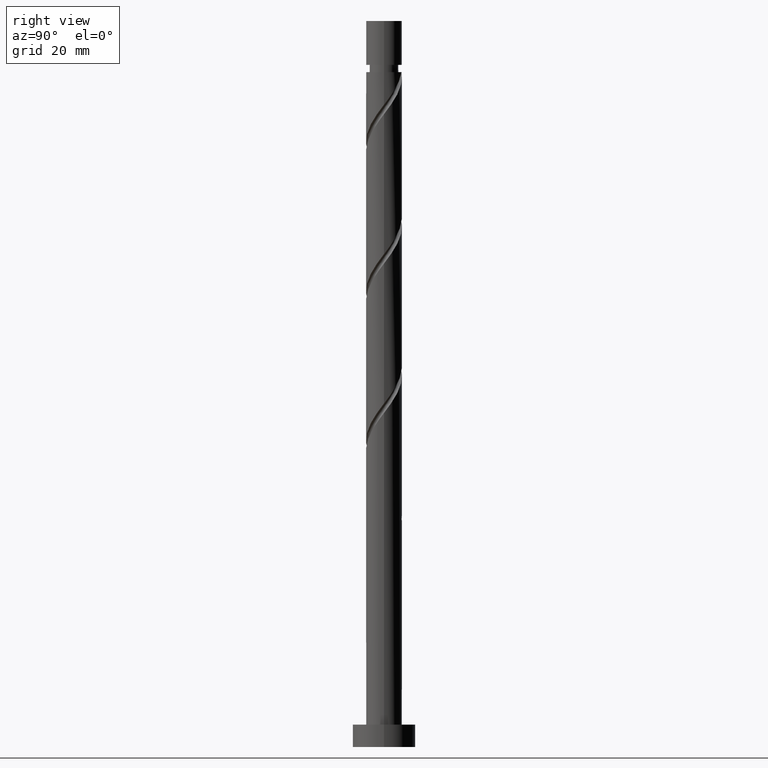
[diagram: clean part render]
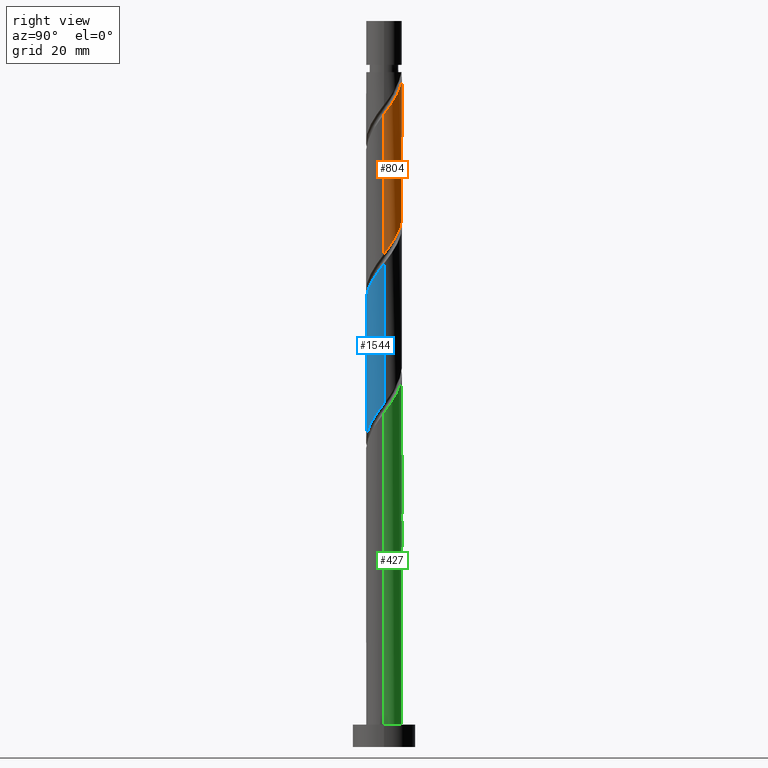
[diagram: same view with three faces highlighted in distinct colors, each labeled with its STEP entity id]
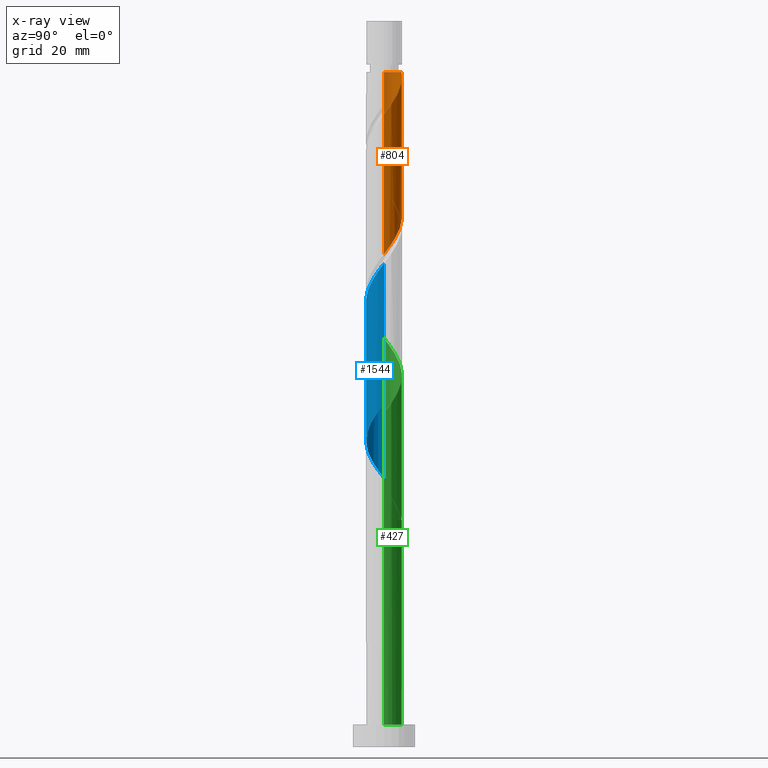
[diagram: x-ray of the same camera — body ghosted, the three highlighted faces saturated]
A machine part, right view with three faces highlighted in distinct colors.
The next image is the same camera in x-ray (body ghosted, the three faces saturated) — at least one of them is partly hidden behind the body in this view.
Their STEP definitions:

[orange] entity #804 — the highlighted cylindrical surface (edge-blend (fillet) strip) has radius 4 mm, axis along (-0, -0, -1).
#4 = AXIS2_PLACEMENT_3D ( 'NONE', #336, #876, #746 ) ;
#5 = CARTESIAN_POINT ( 'NONE',  ( 1.769985991819537530, 3.625529984802036143, 147.1270228079310129 ) ) ;
#11 = CARTESIAN_POINT ( 'NONE',  ( 3.334708473430079145, 2.209008691072452901, 113.0992450301531704 ) ) ;
#37 = VERTEX_POINT ( 'NONE', #1554 ) ;
#45 = CARTESIAN_POINT ( 'NONE',  ( -0.2799121591427005673, 4.024794064930540927, 149.9048005857087844 ) ) ;
#46 = ORIENTED_EDGE ( 'NONE', *, *, #507, .F. ) ;
#117 = EDGE_CURVE ( 'NONE', #1320, #896, #175, .T. ) ;
#136 = CARTESIAN_POINT ( 'NONE',  ( 4.000000000000000000, 5.981513777448084425E-15, 109.9961450186966232 ) ) ;
#137 = CARTESIAN_POINT ( 'NONE',  ( 2.648031390325383150, 3.043886962058127921, 145.7381339190420988 ) ) ;
#140 = CARTESIAN_POINT ( 'NONE',  ( 4.000000000000000000, 5.981513777448084425E-15, 109.9961450186966232 ) ) ;
#142 = CARTESIAN_POINT ( 'NONE',  ( 1.312067740227892410, 3.815205935069464260, 116.5714672523754274 ) ) ;
#154 = CARTESIAN_POINT ( 'NONE',  ( 3.580411880364401611, 1.783437906669445905, 143.6548005857087276 ) ) ;
#157 = CARTESIAN_POINT ( 'NONE',  ( -2.996824607992350842, 2.649347517584564216, 122.8214672523754274 ) ) ;
#175 = LINE ( 'NONE', #606, #803 ) ;
#228 =( BOUNDED_CURVE ( )  B_SPLINE_CURVE ( 2, ( #1624, #285, #421, #1094, #1498, #1229, #157, #1594, #1083, #547, #947, #1354, #1074, #1217, #1733, #142, #1196, #686, #1090, #800, #11, #1493, #412, #670, #655, #405, #136 ),
 .UNSPECIFIED., .F., .T. ) 
 B_SPLINE_CURVE_WITH_KNOTS ( ( 3, 2, 2, 2, 2, 2, 2, 2, 2, 2, 2, 2, 2, 3 ),
 ( 0.4295317669814461836, 0.4375000000000000000, 0.4479166666666666852, 0.4583333333333333148, 0.4687500000000000000, 0.4791666666666666852, 0.4895833333333333148, 0.5000000000000000000, 0.5104166666666666297, 0.5208333333333333703, 0.5312500000000000000, 0.5416666666666666297, 0.5520833333333333703, 0.5545317669814462391 ),
 .UNSPECIFIED. ) 
 CURVE ( )  GEOMETRIC_REPRESENTATION_ITEM ( )  RATIONAL_B_SPLINE_CURVE ( ( 0.9062941362546370616, 0.9031415850403410328, 0.9090909090909164991, 0.9013135103398348669, 0.9090909090909164991, 0.9013135103398348669, 0.9090909090909164991, 0.9013135103398348669, 0.9090909090909164991, 0.9013135103398348669, 0.9090909090909164991, 0.9013135103398348669, 0.9090909090909164991, 0.9013135103398348669, 0.9090909090909164991, 0.9013135103398348669, 0.9090909090909164991, 0.9013135103398348669, 0.9090909090909164991, 0.9013135103398348669, 0.9090909090909164991, 0.9013135103398348669, 0.9090909090909164991, 0.9013135103398348669, 0.9090909090909164991, 0.9072628343904102222, 0.9062941362546368396 ) ) 
 REPRESENTATION_ITEM ( '' )  );
#273 = ORIENTED_EDGE ( 'NONE', *, *, #1366, .F. ) ;
#285 = CARTESIAN_POINT ( 'NONE',  ( -4.000000000000002665, 0.4020151261036815638, 126.1293853161740088 ) ) ;
#292 = CARTESIAN_POINT ( 'NONE',  ( 4.000000000000006217, -1.600054935467353086E-15, 141.2023450416097887 ) ) ;
#336 = CARTESIAN_POINT ( 'NONE',  ( 0.000000000000000000, 0.000000000000000000, 162.0000000000000000 ) ) ;
#339 = CARTESIAN_POINT ( 'NONE',  ( -3.999999999999993339, 0.000000000000000000, 150.5992450301532131 ) ) ;
#380 = CARTESIAN_POINT ( 'NONE',  ( 0.000000000000000000, 0.000000000000000000, 150.5992450301532131 ) ) ;
#385 = ORIENTED_EDGE ( 'NONE', *, *, #117, .T. ) ;
#401 =( BOUNDED_CURVE ( )  B_SPLINE_CURVE ( 2, ( #292, #1326, #1367, #1729, #154, #814, #700, #137, #678, #5, #1237, #449, #1114, #45, #1102 ),
 .UNSPECIFIED., .F., .F. ) 
 B_SPLINE_CURVE_WITH_KNOTS ( ( 3, 2, 2, 2, 2, 2, 2, 3 ),
 ( 0.6795317669814463502, 0.6875000000000000000, 0.6979166666666667407, 0.7083333333333332593, 0.7187500000000000000, 0.7291666666666667407, 0.7395833333333332593, 0.7500000000000000000 ),
 .UNSPECIFIED. ) 
 CURVE ( )  GEOMETRIC_REPRESENTATION_ITEM ( )  RATIONAL_B_SPLINE_CURVE ( ( 0.9062941362546421686, 0.9031415850403465839, 0.9090909090909219392, 0.9013135103398401959, 0.9090909090909219392, 0.9013135103398401959, 0.9090909090909219392, 0.9013135103398401959, 0.9090909090909219392, 0.9013135103398401959, 0.9090909090909219392, 0.9013135103398401959, 0.9090909090909219392, 0.9013135103398401959, 0.9090909090909219392 ) ) 
 REPRESENTATION_ITEM ( '' )  );
#405 = CARTESIAN_POINT ( 'NONE',  ( 4.000000000000000000, 0.1229678066306954531, 110.1593087067247723 ) ) ;
#412 = CARTESIAN_POINT ( 'NONE',  ( 3.792814557677647969, 1.270652482415433271, 111.7103561412642989 ) ) ;
#421 = CARTESIAN_POINT ( 'NONE',  ( -3.919999999999999929, 0.7959899496852966827, 125.5992450301532131 ) ) ;
#429 = CIRCLE ( 'NONE', #919, 3.999999999999993339 ) ;
#449 = CARTESIAN_POINT ( 'NONE',  ( 0.7713189730113438891, 3.960099130553270896, 148.5159116968198987 ) ) ;
#468 = LINE ( 'NONE', #1009, #574 ) ;
#507 = EDGE_CURVE ( 'NONE', #529, #1022, #468, .T. ) ;
#529 = VERTEX_POINT ( 'NONE', #339 ) ;
#540 = EDGE_CURVE ( 'NONE', #1022, #896, #228, .T. ) ;
#547 = CARTESIAN_POINT ( 'NONE',  ( -1.769985991819531979, 3.625529984802032590, 120.7381339190420988 ) ) ;
#574 = VECTOR ( 'NONE', #1542, 1000.000000000000000 ) ;
#606 = CARTESIAN_POINT ( 'NONE',  ( 4.000000000000000000, 4.898587196589412829E-16, 162.0000000000000000 ) ) ;
#655 = CARTESIAN_POINT ( 'NONE',  ( 3.992446597741899694, 0.2457034069343154159, 110.3214672523754274 ) ) ;
#670 = CARTESIAN_POINT ( 'NONE',  ( 3.960099130553265123, 0.7713189730113372278, 111.0159116968198703 ) ) ;
#678 = CARTESIAN_POINT ( 'NONE',  ( 2.209008691072458230, 3.334708473430081810, 146.4325783634865559 ) ) ;
#686 = CARTESIAN_POINT ( 'NONE',  ( 2.254808073111005395, 3.345617825659325195, 115.1825783634865275 ) ) ;
#700 = CARTESIAN_POINT ( 'NONE',  ( 2.996824607992357947, 2.649347517584564660, 145.0436894745976133 ) ) ;
#746 = DIRECTION ( 'NONE',  ( -1.000000000000000000, 0.000000000000000000, 0.000000000000000000 ) ) ;
#800 = CARTESIAN_POINT ( 'NONE',  ( 3.043886962058125700, 2.648031390325375600, 113.7936894745976275 ) ) ;
#803 = VECTOR ( 'NONE', #1154, 1000.000000000000000 ) ;
#804 = ADVANCED_FACE ( 'NONE', ( #1006 ), #1539, .T. ) ;
#814 = CARTESIAN_POINT ( 'NONE',  ( 3.345617825659332745, 2.254808073111003619, 144.3492450301532699 ) ) ;
#876 = DIRECTION ( 'NONE',  ( -0.000000000000000000, -0.000000000000000000, -1.000000000000000000 ) ) ;
#896 = VERTEX_POINT ( 'NONE', #140 ) ;
#915 = CARTESIAN_POINT ( 'NONE',  ( 4.000000000000006217, -1.600054935467353086E-15, 141.2023450416098171 ) ) ;
#919 = AXIS2_PLACEMENT_3D ( 'NONE', #380, #1227, #923 ) ;
#923 = DIRECTION ( 'NONE',  ( -1.000000000000000000, 0.000000000000000000, 0.000000000000000000 ) ) ;
#926 = EDGE_LOOP ( 'NONE', ( #273, #385, #1435, #46, #1451 ) ) ;
#947 = CARTESIAN_POINT ( 'NONE',  ( -1.270652482415435491, 3.792814557677647969, 120.0436894745976417 ) ) ;
#1006 = FACE_OUTER_BOUND ( 'NONE', #926, .T. ) ;
#1009 = CARTESIAN_POINT ( 'NONE',  ( -4.000000000000000000, 0.000000000000000000, 162.0000000000000000 ) ) ;
#1022 = VERTEX_POINT ( 'NONE', #1660 ) ;
#1074 = CARTESIAN_POINT ( 'NONE',  ( -0.2457034069343171923, 3.992446597741899694, 118.6548005857087560 ) ) ;
#1083 = CARTESIAN_POINT ( 'NONE',  ( -2.209008691072453789, 3.334708473430079145, 121.4325783634865132 ) ) ;
#1090 = CARTESIAN_POINT ( 'NONE',  ( 2.649347517584565104, 2.996824607992349065, 114.4881339190420562 ) ) ;
#1094 = CARTESIAN_POINT ( 'NONE',  ( -3.815205935069465149, 1.312067740227889301, 124.9048005857087844 ) ) ;
#1102 = CARTESIAN_POINT ( 'NONE',  ( -0.7959899496852946843, 3.919999999999989271, 150.5992450301532415 ) ) ;
#1114 = CARTESIAN_POINT ( 'NONE',  ( 0.2457034069343216887, 3.992446597741905467, 149.2103561412642705 ) ) ;
#1154 = DIRECTION ( 'NONE',  ( -0.000000000000000000, -0.000000000000000000, -1.000000000000000000 ) ) ;
#1196 = CARTESIAN_POINT ( 'NONE',  ( 1.783437906669448125, 3.580411880364394062, 115.8770228079309703 ) ) ;
#1217 = CARTESIAN_POINT ( 'NONE',  ( 0.2799121591427049527, 4.024794064930534709, 117.9603561412643700 ) ) ;
#1227 = DIRECTION ( 'NONE',  ( -0.000000000000000000, -0.000000000000000000, -1.000000000000000000 ) ) ;
#1229 = CARTESIAN_POINT ( 'NONE',  ( -3.345617825659326972, 2.254808073111003175, 123.5159116968198845 ) ) ;
#1237 = CARTESIAN_POINT ( 'NONE',  ( 1.270652482415440154, 3.792814557677650633, 147.8214672523754416 ) ) ;
#1293 = EDGE_CURVE ( 'NONE', #529, #37, #429, .T. ) ;
#1320 = VERTEX_POINT ( 'NONE', #915 ) ;
#1326 = CARTESIAN_POINT ( 'NONE',  ( 4.000000000000003553, 0.4020151261036881141, 141.7357714107990603 ) ) ;
#1354 = CARTESIAN_POINT ( 'NONE',  ( -0.7713189730113397813, 3.960099130553265123, 119.3492450301532131 ) ) ;
#1366 = EDGE_CURVE ( 'NONE', #1320, #37, #401, .T. ) ;
#1367 = CARTESIAN_POINT ( 'NONE',  ( 3.920000000000005702, 0.7959899496852964607, 142.2659116968198703 ) ) ;
#1435 = ORIENTED_EDGE ( 'NONE', *, *, #540, .F. ) ;
#1451 = ORIENTED_EDGE ( 'NONE', *, *, #1293, .T. ) ;
#1493 = CARTESIAN_POINT ( 'NONE',  ( 3.625529984802032590, 1.769985991819529314, 112.4048005857087560 ) ) ;
#1498 = CARTESIAN_POINT ( 'NONE',  ( -3.580411880364394506, 1.783437906669445905, 124.2103561412643131 ) ) ;
#1539 = CYLINDRICAL_SURFACE ( 'NONE', #4, 4.000000000000000000 ) ;
#1542 = DIRECTION ( 'NONE',  ( -0.000000000000000000, -0.000000000000000000, -1.000000000000000000 ) ) ;
#1554 = CARTESIAN_POINT ( 'NONE',  ( -0.7959899496852946843, 3.919999999999989271, 150.5992450301532131 ) ) ;
#1594 = CARTESIAN_POINT ( 'NONE',  ( -2.648031390325376488, 3.043886962058125700, 122.1270228079309987 ) ) ;
#1624 = CARTESIAN_POINT ( 'NONE',  ( -4.000000000000000888, -2.751496337626119246E-15, 126.6628116853632804 ) ) ;
#1660 = CARTESIAN_POINT ( 'NONE',  ( -4.000000000000000888, -2.751496337626119246E-15, 126.6628116853632804 ) ) ;
#1729 = CARTESIAN_POINT ( 'NONE',  ( 3.815205935069471810, 1.312067740227889079, 142.9603561412643558 ) ) ;
#1733 = CARTESIAN_POINT ( 'NONE',  ( 0.7959899496852975709, 3.919999999999999929, 117.2659116968198703 ) ) ;

[blue] entity #1544 — the highlighted cylindrical surface (edge-blend (fillet) strip) has radius 4 mm, axis along (-0, -0, -1).
#9 = CARTESIAN_POINT ( 'NONE',  ( 4.000000000000000000, 5.981513777448084425E-15, 76.66281168536328039 ) ) ;
#12 = CARTESIAN_POINT ( 'NONE',  ( -2.648031390325382262, -3.043886962058128809, 95.73813391904209880 ) ) ;
#20 = CARTESIAN_POINT ( 'NONE',  ( 2.254808073111003619, -3.345617825659332745, 102.6825783634865559 ) ) ;
#69 = VECTOR ( 'NONE', #587, 1000.000000000000000 ) ;
#119 = CARTESIAN_POINT ( 'NONE',  ( -3.992446597741899694, -0.2457034069343168592, 60.32146725237542739 ) ) ;
#128 = CARTESIAN_POINT ( 'NONE',  ( -1.312067740227890189, -3.815205935069465149, 66.57146725237544160 ) ) ;
#133 = CARTESIAN_POINT ( 'NONE',  ( -3.043886962058125700, -2.648031390325376044, 63.79368947459765593 ) ) ;
#144 = CARTESIAN_POINT ( 'NONE',  ( -4.000000000000006217, -0.4020151261036810086, 91.73577141079906028 ) ) ;
#165 = CARTESIAN_POINT ( 'NONE',  ( 3.625529984802036143, -1.769985991819537530, 105.4603561412643273 ) ) ;
#213 = AXIS2_PLACEMENT_3D ( 'NONE', #1136, #766, #636 ) ;
#221 = VERTEX_POINT ( 'NONE', #1629 ) ;
#225 = EDGE_CURVE ( 'NONE', #1052, #1279, #1577, .T. ) ;
#254 = CARTESIAN_POINT ( 'NONE',  ( -3.334708473430079145, -2.209008691072452901, 63.09924503015318464 ) ) ;
#274 = CARTESIAN_POINT ( 'NONE',  ( 3.792814557677651521, -1.270652482415440154, 106.1548005857087702 ) ) ;
#290 = CARTESIAN_POINT ( 'NONE',  ( 1.312067740227889301, -3.815205935069471810, 101.2936894745976559 ) ) ;
#298 = CARTESIAN_POINT ( 'NONE',  ( 3.960099130553270896, -0.7713189730113436671, 106.8492450301532131 ) ) ;
#388 = CARTESIAN_POINT ( 'NONE',  ( -0.7959899496852971268, -3.919999999999999929, 67.26591169681985605 ) ) ;
#395 = CARTESIAN_POINT ( 'NONE',  ( 3.815205935069464260, -1.312067740227891965, 74.90480058570875599 ) ) ;
#408 = CARTESIAN_POINT ( 'NONE',  ( -3.345617825659332301, -2.254808073111004951, 94.34924503015322728 ) ) ;
#430 = CARTESIAN_POINT ( 'NONE',  ( 3.043886962058128809, -2.648031390325382262, 104.0714672523754416 ) ) ;
#525 = CARTESIAN_POINT ( 'NONE',  ( -3.960099130553265123, -0.7713189730113386711, 61.01591169681987026 ) ) ;
#542 = CARTESIAN_POINT ( 'NONE',  ( 2.648031390325375600, -3.043886962058125700, 72.12702280793098453 ) ) ;
#554 = CARTESIAN_POINT ( 'NONE',  ( -1.769985991819536642, -3.625529984802036587, 97.12702280793098453 ) ) ;
#587 = DIRECTION ( 'NONE',  ( -0.000000000000000000, -0.000000000000000000, -1.000000000000000000 ) ) ;
#636 = DIRECTION ( 'NONE',  ( -1.000000000000000000, 0.000000000000000000, 0.000000000000000000 ) ) ;
#643 = CARTESIAN_POINT ( 'NONE',  ( -3.792814557677647969, -1.270652482415435047, 61.71035614126430602 ) ) ;
#649 = EDGE_LOOP ( 'NONE', ( #764, #1394, #1734, #1564 ) ) ;
#673 = CARTESIAN_POINT ( 'NONE',  ( -3.625529984802032590, -1.769985991819531312, 62.40480058570875599 ) ) ;
#688 = CARTESIAN_POINT ( 'NONE',  ( -3.920000000000005702, -0.7959899496852967937, 92.26591169681988447 ) ) ;
#698 = CARTESIAN_POINT ( 'NONE',  ( -1.270652482415439710, -3.792814557677651521, 97.82146725237544160 ) ) ;
#709 = CARTESIAN_POINT ( 'NONE',  ( 4.000000000000005329, -2.691681199851622530E-16, 107.8690117082764885 ) ) ;
#734 = CARTESIAN_POINT ( 'NONE',  ( -4.000000000000005329, -2.243067666543018643E-15, 91.20234504160978872 ) ) ;
#764 = ORIENTED_EDGE ( 'NONE', *, *, #1476, .F. ) ;
#766 = DIRECTION ( 'NONE',  ( -0.000000000000000000, -0.000000000000000000, -1.000000000000000000 ) ) ;
#790 = CARTESIAN_POINT ( 'NONE',  ( 3.580411880364394062, -1.783437906669448125, 74.21035614126429891 ) ) ;
#811 = CARTESIAN_POINT ( 'NONE',  ( 1.769985991819531312, -3.625529984802032590, 70.73813391904209880 ) ) ;
#815 = CARTESIAN_POINT ( 'NONE',  ( 4.000000000000000000, -0.4020151261036883361, 76.12938531617402305 ) ) ;
#820 = EDGE_CURVE ( 'NONE', #1052, #221, #1231, .T. ) ;
#829 = CARTESIAN_POINT ( 'NONE',  ( 1.783437906669445905, -3.580411880364401611, 101.9881339190421130 ) ) ;
#839 = CARTESIAN_POINT ( 'NONE',  ( 3.992446597741905467, -0.2457034069343214111, 107.5436894745976701 ) ) ;
#922 = CARTESIAN_POINT ( 'NONE',  ( 3.345617825659325195, -2.254808073111004951, 73.51591169681988447 ) ) ;
#960 = CARTESIAN_POINT ( 'NONE',  ( -3.580411880364400723, -1.783437906669446793, 93.65480058570878441 ) ) ;
#962 = VECTOR ( 'NONE', #992, 1000.000000000000000 ) ;
#969 = CARTESIAN_POINT ( 'NONE',  ( 3.334708473430081366, -2.209008691072459118, 104.7659116968198987 ) ) ;
#980 = VERTEX_POINT ( 'NONE', #9 ) ;
#982 = CARTESIAN_POINT ( 'NONE',  ( -4.000000000000000000, 0.000000000000000000, 162.0000000000000000 ) ) ;
#992 = DIRECTION ( 'NONE',  ( -0.000000000000000000, -0.000000000000000000, -1.000000000000000000 ) ) ;
#1041 = FACE_OUTER_BOUND ( 'NONE', #649, .T. ) ;
#1052 = VERTEX_POINT ( 'NONE', #734 ) ;
#1080 = CARTESIAN_POINT ( 'NONE',  ( -1.783437906669446571, -3.580411880364394506, 65.87702280793098453 ) ) ;
#1084 = CARTESIAN_POINT ( 'NONE',  ( 4.000000000000006217, -0.1229678066306957029, 107.7058480202483537 ) ) ;
#1091 = CARTESIAN_POINT ( 'NONE',  ( 0.2799121591427031763, -4.024794064930540927, 99.90480058570878441 ) ) ;
#1112 = CARTESIAN_POINT ( 'NONE',  ( -0.2457034069343194127, -3.992446597741905467, 99.21035614126429891 ) ) ;
#1123 = LINE ( 'NONE', #1639, #69 ) ;
#1136 = CARTESIAN_POINT ( 'NONE',  ( 0.000000000000000000, 0.000000000000000000, 162.0000000000000000 ) ) ;
#1184 = CARTESIAN_POINT ( 'NONE',  ( 4.000000000000005329, -2.691681199851622530E-16, 107.8690117082764885 ) ) ;
#1192 = CARTESIAN_POINT ( 'NONE',  ( -2.254808073111004063, -3.345617825659326527, 65.18257836348654166 ) ) ;
#1226 = CARTESIAN_POINT ( 'NONE',  ( -3.815205935069471810, -1.312067740227889301, 92.96035614126432733 ) ) ;
#1231 = LINE ( 'NONE', #982, #962 ) ;
#1235 = CARTESIAN_POINT ( 'NONE',  ( 0.7959899496852965717, -3.920000000000005702, 100.5992450301531989 ) ) ;
#1279 = VERTEX_POINT ( 'NONE', #1184 ) ;
#1339 = CARTESIAN_POINT ( 'NONE',  ( 3.919999999999999929, -0.7959899496852973488, 75.59924503015321307 ) ) ;
#1344 = CARTESIAN_POINT ( 'NONE',  ( 4.000000000000000000, 5.981513777448084425E-15, 76.66281168536328039 ) ) ;
#1349 = CARTESIAN_POINT ( 'NONE',  ( -0.7713189730113420017, -3.960099130553270896, 98.51591169681988447 ) ) ;
#1375 = CARTESIAN_POINT ( 'NONE',  ( -2.996824607992356615, -2.649347517584565992, 95.04368947459767014 ) ) ;
#1394 = ORIENTED_EDGE ( 'NONE', *, *, #225, .F. ) ;
#1453 = CARTESIAN_POINT ( 'NONE',  ( -4.000000000000000888, -0.1229678066306910678, 60.15930870672476516 ) ) ;
#1460 = CARTESIAN_POINT ( 'NONE',  ( -0.2799121591427060629, -4.024794064930536486, 67.96035614126431312 ) ) ;
#1467 = CARTESIAN_POINT ( 'NONE',  ( 2.996824607992349510, -2.649347517584565104, 72.82146725237539897 ) ) ;
#1476 = EDGE_CURVE ( 'NONE', #1279, #980, #1123, .T. ) ;
#1482 = CARTESIAN_POINT ( 'NONE',  ( 2.649347517584565104, -2.996824607992356615, 103.3770228079309845 ) ) ;
#1484 = CARTESIAN_POINT ( 'NONE',  ( -4.000000000000000888, 4.142198290882799695E-15, 59.99614501869660188 ) ) ;
#1504 = CARTESIAN_POINT ( 'NONE',  ( -2.209008691072457786, -3.334708473430082698, 96.43257836348654166 ) ) ;
#1537 = CYLINDRICAL_SURFACE ( 'NONE', #213, 4.000000000000000000 ) ;
#1544 = ADVANCED_FACE ( 'NONE', ( #1041 ), #1537, .T. ) ;
#1564 = ORIENTED_EDGE ( 'NONE', *, *, #1712, .F. ) ;
#1577 =( BOUNDED_CURVE ( )  B_SPLINE_CURVE ( 2, ( #1620, #144, #688, #1226, #960, #408, #1375, #12, #1504, #554, #698, #1349, #1112, #1091, #1235, #290, #829, #20, #1482, #430, #969, #165, #274, #298, #839, #1084, #709 ),
 .UNSPECIFIED., .F., .F. ) 
 B_SPLINE_CURVE_WITH_KNOTS ( ( 3, 2, 2, 2, 2, 2, 2, 2, 2, 2, 2, 2, 2, 3 ),
 ( 0.3045317669814462391, 0.3125000000000000000, 0.3229166666666666297, 0.3333333333333333703, 0.3437500000000000000, 0.3541666666666666297, 0.3645833333333333703, 0.3750000000000000000, 0.3854166666666666297, 0.3958333333333333703, 0.4062500000000000000, 0.4166666666666666297, 0.4270833333333333703, 0.4295317669814463502 ),
 .UNSPECIFIED. ) 
 CURVE ( )  GEOMETRIC_REPRESENTATION_ITEM ( )  RATIONAL_B_SPLINE_CURVE ( ( 0.9062941362546421686, 0.9031415850403463619, 0.9090909090909219392, 0.9013135103398401959, 0.9090909090909219392, 0.9013135103398401959, 0.9090909090909219392, 0.9013135103398401959, 0.9090909090909219392, 0.9013135103398401959, 0.9090909090909219392, 0.9013135103398401959, 0.9090909090909219392, 0.9013135103398401959, 0.9090909090909219392, 0.9013135103398401959, 0.9090909090909219392, 0.9013135103398401959, 0.9090909090909219392, 0.9013135103398401959, 0.9090909090909219392, 0.9013135103398401959, 0.9090909090909219392, 0.9013135103398401959, 0.9090909090909219392, 0.9072628343904155512, 0.9062941362546421686 ) ) 
 REPRESENTATION_ITEM ( '' )  );
#1581 = CARTESIAN_POINT ( 'NONE',  ( -2.649347517584564660, -2.996824607992349510, 64.48813391904208459 ) ) ;
#1606 =( BOUNDED_CURVE ( )  B_SPLINE_CURVE ( 2, ( #1344, #815, #1339, #395, #790, #922, #1467, #542, #1738, #811, #1720, #1609, #1728, #1460, #388, #128, #1080, #1192, #1581, #133, #254, #673, #643, #525, #119, #1453, #1484 ),
 .UNSPECIFIED., .F., .F. ) 
 B_SPLINE_CURVE_WITH_KNOTS ( ( 3, 2, 2, 2, 2, 2, 2, 2, 2, 2, 2, 2, 2, 3 ),
 ( 0.8045317669814463502, 0.8125000000000000000, 0.8229166666666666297, 0.8333333333333333703, 0.8437500000000000000, 0.8541666666666666297, 0.8645833333333333703, 0.8750000000000000000, 0.8854166666666666297, 0.8958333333333333703, 0.9062500000000000000, 0.9166666666666666297, 0.9270833333333333703, 0.9295317669814463502 ),
 .UNSPECIFIED. ) 
 CURVE ( )  GEOMETRIC_REPRESENTATION_ITEM ( )  RATIONAL_B_SPLINE_CURVE ( ( 0.9062941362546367285, 0.9031415850403410328, 0.9090909090909164991, 0.9013135103398348669, 0.9090909090909164991, 0.9013135103398348669, 0.9090909090909164991, 0.9013135103398348669, 0.9090909090909164991, 0.9013135103398348669, 0.9090909090909164991, 0.9013135103398348669, 0.9090909090909164991, 0.9013135103398348669, 0.9090909090909164991, 0.9013135103398348669, 0.9090909090909164991, 0.9013135103398348669, 0.9090909090909164991, 0.9013135103398348669, 0.9090909090909164991, 0.9013135103398348669, 0.9090909090909164991, 0.9013135103398348669, 0.9090909090909164991, 0.9072628343904102222, 0.9062941362546367285 ) ) 
 REPRESENTATION_ITEM ( '' )  );
#1609 = CARTESIAN_POINT ( 'NONE',  ( 0.7713189730113375608, -3.960099130553265123, 69.34924503015319885 ) ) ;
#1620 = CARTESIAN_POINT ( 'NONE',  ( -4.000000000000005329, -2.243067666543018643E-15, 91.20234504160978872 ) ) ;
#1629 = CARTESIAN_POINT ( 'NONE',  ( -4.000000000000000888, 4.142198290882799695E-15, 59.99614501869660188 ) ) ;
#1639 = CARTESIAN_POINT ( 'NONE',  ( 4.000000000000000000, 4.898587196589412829E-16, 162.0000000000000000 ) ) ;
#1712 = EDGE_CURVE ( 'NONE', #980, #221, #1606, .T. ) ;
#1720 = CARTESIAN_POINT ( 'NONE',  ( 1.270652482415434825, -3.792814557677647969, 70.04368947459764172 ) ) ;
#1728 = CARTESIAN_POINT ( 'NONE',  ( 0.2457034069343156657, -3.992446597741899694, 68.65480058570875599 ) ) ;
#1734 = ORIENTED_EDGE ( 'NONE', *, *, #820, .T. ) ;
#1738 = CARTESIAN_POINT ( 'NONE',  ( 2.209008691072451569, -3.334708473430080033, 71.43257836348655587 ) ) ;

[green] entity #427 — the highlighted cylindrical surface (edge-blend (fillet) strip) has radius 4 mm, axis along (-0, -0, -1).
#3 = CARTESIAN_POINT ( 'NONE',  ( -3.815205935069465149, 1.312067740227889301, 58.23813391904209169 ) ) ;
#7 = EDGE_CURVE ( 'NONE', #641, #1032, #1443, .T. ) ;
#60 = CYLINDRICAL_SURFACE ( 'NONE', #378, 4.000000000000000000 ) ;
#102 = ORIENTED_EDGE ( 'NONE', *, *, #7, .F. ) ;
#104 = CARTESIAN_POINT ( 'NONE',  ( -4.000000000000005329, 0.1229678066306987561, 91.03918135358165387 ) ) ;
#113 = CARTESIAN_POINT ( 'NONE',  ( 4.000000000000000000, 4.898587196589412829E-16, 5.000000000000000000 ) ) ;
#120 = AXIS2_PLACEMENT_3D ( 'NONE', #466, #1399, #1529 ) ;
#122 = EDGE_CURVE ( 'NONE', #361, #1323, #586, .T. ) ;
#161 = CARTESIAN_POINT ( 'NONE',  ( -0.7959899496852960166, 3.920000000000004370, 50.59924503015319885 ) ) ;
#164 = CARTESIAN_POINT ( 'NONE',  ( -3.334708473430083142, 2.209008691072457786, 54.76591169681985605 ) ) ;
#208 = CARTESIAN_POINT ( 'NONE',  ( -4.000000000000000000, 0.000000000000000000, 162.0000000000000000 ) ) ;
#221 = VERTEX_POINT ( 'NONE', #1629 ) ;
#223 = CARTESIAN_POINT ( 'NONE',  ( 2.209008691072458230, 3.334708473430081810, 79.76591169681988447 ) ) ;
#257 = CARTESIAN_POINT ( 'NONE',  ( -2.648031390325376488, 3.043886962058125700, 55.46035614126430602 ) ) ;
#269 = CARTESIAN_POINT ( 'NONE',  ( -3.792814557677651965, 1.270652482415438822, 89.48813391904208459 ) ) ;
#277 = CARTESIAN_POINT ( 'NONE',  ( -3.043886962058130141, 2.648031390325381373, 87.40480058570879862 ) ) ;
#297 = CARTESIAN_POINT ( 'NONE',  ( -3.625529984802037031, 1.769985991819535531, 55.46035614126430602 ) ) ;
#300 = EDGE_CURVE ( 'NONE', #912, #641, #681, .T. ) ;
#337 = DIRECTION ( 'NONE',  ( -1.000000000000000000, 0.000000000000000000, 0.000000000000000000 ) ) ;
#340 =( BOUNDED_CURVE ( )  B_SPLINE_CURVE ( 2, ( #1316, #1176, #1713, #501, #744, #1282, #1548, #1419, #223, #758, #1291, #1209, #1202, #379, #1477, #509, #1183, #1325, #1591, #277, #1599, #1751, #269, #1048, #937, #104, #950 ),
 .UNSPECIFIED., .F., .F. ) 
 B_SPLINE_CURVE_WITH_KNOTS ( ( 3, 2, 2, 2, 2, 2, 2, 2, 2, 2, 2, 2, 2, 3 ),
 ( 0.1795317669814463224, 0.1875000000000000000, 0.1979166666666666297, 0.2083333333333333703, 0.2187500000000000000, 0.2291666666666666297, 0.2395833333333333703, 0.2500000000000000000, 0.2604166666666666297, 0.2708333333333333703, 0.2812500000000000000, 0.2916666666666666297, 0.3020833333333333703, 0.3045317669814462391 ),
 .UNSPECIFIED. ) 
 CURVE ( )  GEOMETRIC_REPRESENTATION_ITEM ( )  RATIONAL_B_SPLINE_CURVE ( ( 0.9062941362546421686, 0.9031415850403463619, 0.9090909090909219392, 0.9013135103398401959, 0.9090909090909219392, 0.9013135103398401959, 0.9090909090909219392, 0.9013135103398401959, 0.9090909090909219392, 0.9013135103398401959, 0.9090909090909219392, 0.9013135103398401959, 0.9090909090909219392, 0.9013135103398401959, 0.9090909090909219392, 0.9013135103398401959, 0.9090909090909219392, 0.9013135103398401959, 0.9090909090909219392, 0.9013135103398401959, 0.9090909090909219392, 0.9013135103398401959, 0.9090909090909219392, 0.9013135103398401959, 0.9090909090909219392, 0.9072628343904156623, 0.9062941362546421686 ) ) 
 REPRESENTATION_ITEM ( '' )  );
#361 = VERTEX_POINT ( 'NONE', #1411 ) ;
#378 = AXIS2_PLACEMENT_3D ( 'NONE', #1139, #602, #337 ) ;
#379 = CARTESIAN_POINT ( 'NONE',  ( -0.2799121591427005673, 4.024794064930540927, 83.23813391904212722 ) ) ;
#382 = EDGE_CURVE ( 'NONE', #1323, #1032, #516, .T. ) ;
#427 = ADVANCED_FACE ( 'NONE', ( #865 ), #60, .T. ) ;
#442 = ORIENTED_EDGE ( 'NONE', *, *, #382, .T. ) ;
#452 = CARTESIAN_POINT ( 'NONE',  ( -4.000000000000000000, 0.000000000000000000, 5.000000000000000000 ) ) ;
#466 = CARTESIAN_POINT ( 'NONE',  ( 0.000000000000000000, 0.000000000000000000, 5.000000000000000000 ) ) ;
#501 = CARTESIAN_POINT ( 'NONE',  ( 3.815205935069471810, 1.312067740227889079, 76.29368947459765593 ) ) ;
#509 = CARTESIAN_POINT ( 'NONE',  ( -1.312067740227889967, 3.815205935069470922, 84.62702280793099874 ) ) ;
#516 = CIRCLE ( 'NONE', #120, 4.000000000000000000 ) ;
#528 = CARTESIAN_POINT ( 'NONE',  ( -0.2457034069343171923, 3.992446597741899694, 51.98813391904207037 ) ) ;
#537 = CARTESIAN_POINT ( 'NONE',  ( -0.7713189730113397813, 3.960099130553265123, 52.68257836348654877 ) ) ;
#551 = DIRECTION ( 'NONE',  ( 0.000000000000000000, -4.336808689942018525E-15, -1.000000000000000000 ) ) ;
#563 = CARTESIAN_POINT ( 'NONE',  ( -3.792814557677651965, 1.270652482415438822, 56.15480058570877020 ) ) ;
#570 = DIRECTION ( 'NONE',  ( 0.000000000000000000, 1.000000000000000000, -5.204170427930421283E-15 ) ) ;
#586 = LINE ( 'NONE', #1131, #1026 ) ;
#595 = DIRECTION ( 'NONE',  ( -0.000000000000000000, -0.000000000000000000, -1.000000000000000000 ) ) ;
#602 = DIRECTION ( 'NONE',  ( -0.000000000000000000, -0.000000000000000000, -1.000000000000000000 ) ) ;
#641 = VERTEX_POINT ( 'NONE', #1628 ) ;
#676 = CARTESIAN_POINT ( 'NONE',  ( -4.000000000000000888, 4.142198290882799695E-15, 59.99614501869660188 ) ) ;
#681 =( BOUNDED_CURVE ( )  B_SPLINE_CURVE ( 2, ( #697, #1513, #968, #846, #1234, #1383, #164, #297, #563, #1637, #838, #708, #1245 ),
 .UNSPECIFIED., .F., .F. ) 
 B_SPLINE_CURVE_WITH_KNOTS ( ( 3, 2, 2, 2, 2, 2, 3 ),
 ( 0.000000000000000000, 0.01041666666666662966, 0.02083333333333337034, 0.03125000000000000000, 0.04166666666666662966, 0.05208333333333336340, 0.05453176698144635709 ),
 .UNSPECIFIED. ) 
 CURVE ( )  GEOMETRIC_REPRESENTATION_ITEM ( )  RATIONAL_B_SPLINE_CURVE ( ( 0.9090909090909219392, 0.9013135103398401959, 0.9090909090909219392, 0.9013135103398401959, 0.9090909090909219392, 0.9013135103398401959, 0.9090909090909219392, 0.9013135103398401959, 0.9090909090909219392, 0.9013135103398401959, 0.9090909090909219392, 0.9072628343904156623, 0.9062941362546421686 ) ) 
 REPRESENTATION_ITEM ( '' )  );
#689 = EDGE_CURVE ( 'NONE', #221, #1115, #1299, .T. ) ;
#697 = CARTESIAN_POINT ( 'NONE',  ( -0.7959899496852960166, 3.920000000000004370, 50.59924503015319885 ) ) ;
#708 = CARTESIAN_POINT ( 'NONE',  ( -4.000000000000005329, 0.1229678066306928580, 57.70584802024831816 ) ) ;
#720 = DIRECTION ( 'NONE',  ( -0.000000000000000000, -0.000000000000000000, -1.000000000000000000 ) ) ;
#734 = CARTESIAN_POINT ( 'NONE',  ( -4.000000000000005329, -2.243067666543018643E-15, 91.20234504160978872 ) ) ;
#744 = CARTESIAN_POINT ( 'NONE',  ( 3.580411880364401611, 1.783437906669445905, 76.98813391904211301 ) ) ;
#758 = CARTESIAN_POINT ( 'NONE',  ( 1.769985991819537530, 3.625529984802036143, 80.46035614126434155 ) ) ;
#767 = CARTESIAN_POINT ( 'NONE',  ( 0.7959899496852974599, 3.919999999999999929, 50.59924503015319885 ) ) ;
#785 = ORIENTED_EDGE ( 'NONE', *, *, #689, .F. ) ;
#794 = EDGE_LOOP ( 'NONE', ( #871, #1124, #442, #102, #1068, #1014, #785, #1680 ) ) ;
#819 = CARTESIAN_POINT ( 'NONE',  ( -2.996824607992350842, 2.649347517584564216, 56.15480058570874888 ) ) ;
#820 = EDGE_CURVE ( 'NONE', #1052, #221, #1231, .T. ) ;
#838 = CARTESIAN_POINT ( 'NONE',  ( -3.992446597741905467, 0.2457034069343191351, 57.54368947459764883 ) ) ;
#846 = CARTESIAN_POINT ( 'NONE',  ( -2.254808073111004951, 3.345617825659332301, 52.68257836348654166 ) ) ;
#851 = EDGE_CURVE ( 'NONE', #912, #1115, #1199, .T. ) ;
#865 = FACE_OUTER_BOUND ( 'NONE', #794, .T. ) ;
#871 = ORIENTED_EDGE ( 'NONE', *, *, #1710, .F. ) ;
#912 = VERTEX_POINT ( 'NONE', #161 ) ;
#937 = CARTESIAN_POINT ( 'NONE',  ( -3.992446597741905467, 0.2457034069343191351, 90.87702280793098453 ) ) ;
#940 = CARTESIAN_POINT ( 'NONE',  ( 0.2799121591427049527, 4.024794064930534709, 51.29368947459764883 ) ) ;
#950 = CARTESIAN_POINT ( 'NONE',  ( -4.000000000000005329, -2.243067666543018643E-15, 91.20234504160978872 ) ) ;
#957 = CARTESIAN_POINT ( 'NONE',  ( 0.000000000000000000, 0.000000000000000000, 50.59924503015321307 ) ) ;
#959 = CARTESIAN_POINT ( 'NONE',  ( -3.580411880364394506, 1.783437906669445905, 57.54368947459764172 ) ) ;
#962 = VECTOR ( 'NONE', #992, 1000.000000000000000 ) ;
#968 = CARTESIAN_POINT ( 'NONE',  ( -1.783437906669447015, 3.580411880364400723, 51.98813391904207748 ) ) ;
#982 = CARTESIAN_POINT ( 'NONE',  ( -4.000000000000000000, 0.000000000000000000, 162.0000000000000000 ) ) ;
#992 = DIRECTION ( 'NONE',  ( -0.000000000000000000, -0.000000000000000000, -1.000000000000000000 ) ) ;
#1014 = ORIENTED_EDGE ( 'NONE', *, *, #851, .T. ) ;
#1026 = VECTOR ( 'NONE', #720, 1000.000000000000000 ) ;
#1032 = VERTEX_POINT ( 'NONE', #452 ) ;
#1048 = CARTESIAN_POINT ( 'NONE',  ( -3.960099130553270896, 0.7713189730113417797, 90.18257836348655587 ) ) ;
#1052 = VERTEX_POINT ( 'NONE', #734 ) ;
#1068 = ORIENTED_EDGE ( 'NONE', *, *, #300, .F. ) ;
#1115 = VERTEX_POINT ( 'NONE', #767 ) ;
#1124 = ORIENTED_EDGE ( 'NONE', *, *, #122, .T. ) ;
#1131 = CARTESIAN_POINT ( 'NONE',  ( 4.000000000000000000, 4.898587196589412829E-16, 162.0000000000000000 ) ) ;
#1139 = CARTESIAN_POINT ( 'NONE',  ( 0.000000000000000000, 0.000000000000000000, 162.0000000000000000 ) ) ;
#1176 = CARTESIAN_POINT ( 'NONE',  ( 4.000000000000006217, 0.4020151261036826185, 75.06910474413243151 ) ) ;
#1183 = CARTESIAN_POINT ( 'NONE',  ( -1.783437906669447015, 3.580411880364400723, 85.32146725237544160 ) ) ;
#1199 = CIRCLE ( 'NONE', #1284, 4.000000000000000000 ) ;
#1202 = CARTESIAN_POINT ( 'NONE',  ( 0.2457034069343216887, 3.992446597741905467, 82.54368947459764172 ) ) ;
#1205 = CARTESIAN_POINT ( 'NONE',  ( -2.209008691072453789, 3.334708473430079145, 54.76591169681985605 ) ) ;
#1209 = CARTESIAN_POINT ( 'NONE',  ( 0.7713189730113438891, 3.960099130553270896, 81.84924503015324149 ) ) ;
#1231 = LINE ( 'NONE', #982, #962 ) ;
#1234 = CARTESIAN_POINT ( 'NONE',  ( -2.649347517584565992, 2.996824607992356615, 53.37702280793098453 ) ) ;
#1245 = CARTESIAN_POINT ( 'NONE',  ( -4.000000000000005329, -2.243067666543018643E-15, 57.86901170827646723 ) ) ;
#1282 = CARTESIAN_POINT ( 'NONE',  ( 3.345617825659332745, 2.254808073111003619, 77.68257836348652745 ) ) ;
#1284 = AXIS2_PLACEMENT_3D ( 'NONE', #957, #551, #570 ) ;
#1291 = CARTESIAN_POINT ( 'NONE',  ( 1.270652482415440154, 3.792814557677650633, 81.15480058570877020 ) ) ;
#1299 =( BOUNDED_CURVE ( )  B_SPLINE_CURVE ( 2, ( #676, #1333, #1463, #3, #959, #1749, #819, #257, #1205, #1742, #1364, #537, #528, #940, #1470 ),
 .UNSPECIFIED., .F., .F. ) 
 B_SPLINE_CURVE_WITH_KNOTS ( ( 3, 2, 2, 2, 2, 2, 2, 3 ),
 ( 0.9295317669814463502, 0.9375000000000000000, 0.9479166666666666297, 0.9583333333333333703, 0.9687500000000000000, 0.9791666666666666297, 0.9895833333333333703, 1.000000000000000000 ),
 .UNSPECIFIED. ) 
 CURVE ( )  GEOMETRIC_REPRESENTATION_ITEM ( )  RATIONAL_B_SPLINE_CURVE ( ( 0.9062941362546367285, 0.9031415850403410328, 0.9090909090909164991, 0.9013135103398348669, 0.9090909090909164991, 0.9013135103398348669, 0.9090909090909164991, 0.9013135103398348669, 0.9090909090909164991, 0.9013135103398348669, 0.9090909090909164991, 0.9013135103398348669, 0.9090909090909164991, 0.9013135103398348669, 0.9090909090909164991 ) ) 
 REPRESENTATION_ITEM ( '' )  );
#1316 = CARTESIAN_POINT ( 'NONE',  ( 4.000000000000005329, -2.691681199851622530E-16, 74.53567837494314574 ) ) ;
#1323 = VERTEX_POINT ( 'NONE', #113 ) ;
#1325 = CARTESIAN_POINT ( 'NONE',  ( -2.254808073111004951, 3.345617825659332301, 86.01591169681989868 ) ) ;
#1333 = CARTESIAN_POINT ( 'NONE',  ( -4.000000000000001776, 0.4020151261036876700, 59.46271864950733033 ) ) ;
#1364 = CARTESIAN_POINT ( 'NONE',  ( -1.270652482415435491, 3.792814557677647969, 53.37702280793098453 ) ) ;
#1383 = CARTESIAN_POINT ( 'NONE',  ( -3.043886962058130141, 2.648031390325381373, 54.07146725237542739 ) ) ;
#1399 = DIRECTION ( 'NONE',  ( 0.000000000000000000, 0.000000000000000000, 1.000000000000000000 ) ) ;
#1411 = CARTESIAN_POINT ( 'NONE',  ( 4.000000000000005329, -2.691681199851622530E-16, 74.53567837494314574 ) ) ;
#1419 = CARTESIAN_POINT ( 'NONE',  ( 2.648031390325383150, 3.043886962058127921, 79.07146725237541318 ) ) ;
#1443 = LINE ( 'NONE', #208, #1583 ) ;
#1463 = CARTESIAN_POINT ( 'NONE',  ( -3.919999999999999929, 0.7959899496852966827, 58.93257836348652035 ) ) ;
#1470 = CARTESIAN_POINT ( 'NONE',  ( 0.7959899496852974599, 3.919999999999999929, 50.59924503015319885 ) ) ;
#1477 = CARTESIAN_POINT ( 'NONE',  ( -0.7959899496852962386, 3.920000000000005702, 83.93257836348655587 ) ) ;
#1513 = CARTESIAN_POINT ( 'NONE',  ( -1.312067740227889967, 3.815205935069470922, 51.29368947459764883 ) ) ;
#1529 = DIRECTION ( 'NONE',  ( 1.000000000000000000, 0.000000000000000000, 0.000000000000000000 ) ) ;
#1548 = CARTESIAN_POINT ( 'NONE',  ( 2.996824607992357947, 2.649347517584564660, 78.37702280793097032 ) ) ;
#1583 = VECTOR ( 'NONE', #595, 1000.000000000000000 ) ;
#1591 = CARTESIAN_POINT ( 'NONE',  ( -2.649347517584565992, 2.996824607992356615, 86.71035614126431312 ) ) ;
#1599 = CARTESIAN_POINT ( 'NONE',  ( -3.334708473430083142, 2.209008691072457786, 88.09924503015319885 ) ) ;
#1628 = CARTESIAN_POINT ( 'NONE',  ( -4.000000000000005329, -2.243067666543018643E-15, 57.86901170827646723 ) ) ;
#1629 = CARTESIAN_POINT ( 'NONE',  ( -4.000000000000000888, 4.142198290882799695E-15, 59.99614501869660188 ) ) ;
#1637 = CARTESIAN_POINT ( 'NONE',  ( -3.960099130553270896, 0.7713189730113417797, 56.84924503015322017 ) ) ;
#1680 = ORIENTED_EDGE ( 'NONE', *, *, #820, .F. ) ;
#1710 = EDGE_CURVE ( 'NONE', #361, #1052, #340, .T. ) ;
#1713 = CARTESIAN_POINT ( 'NONE',  ( 3.920000000000005702, 0.7959899496852964607, 75.59924503015321307 ) ) ;
#1742 = CARTESIAN_POINT ( 'NONE',  ( -1.769985991819531979, 3.625529984802032590, 54.07146725237543450 ) ) ;
#1749 = CARTESIAN_POINT ( 'NONE',  ( -3.345617825659326972, 2.254808073111003175, 56.84924503015321307 ) ) ;
#1751 = CARTESIAN_POINT ( 'NONE',  ( -3.625529984802037031, 1.769985991819535531, 88.79368947459767014 ) ) ;